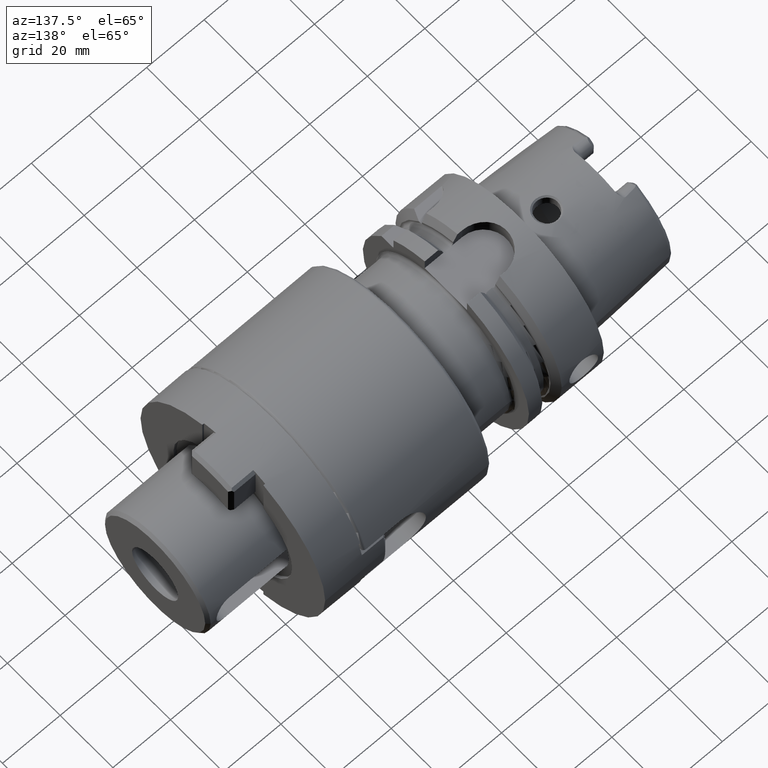
[diagram: clean part render]
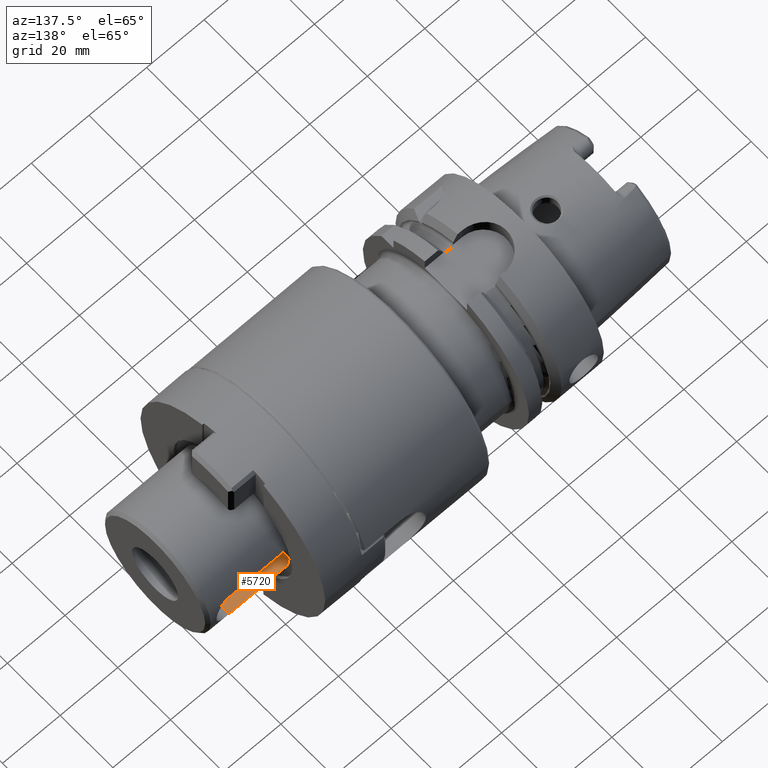
[diagram: same view with one face highlighted and labeled with its STEP entity id]
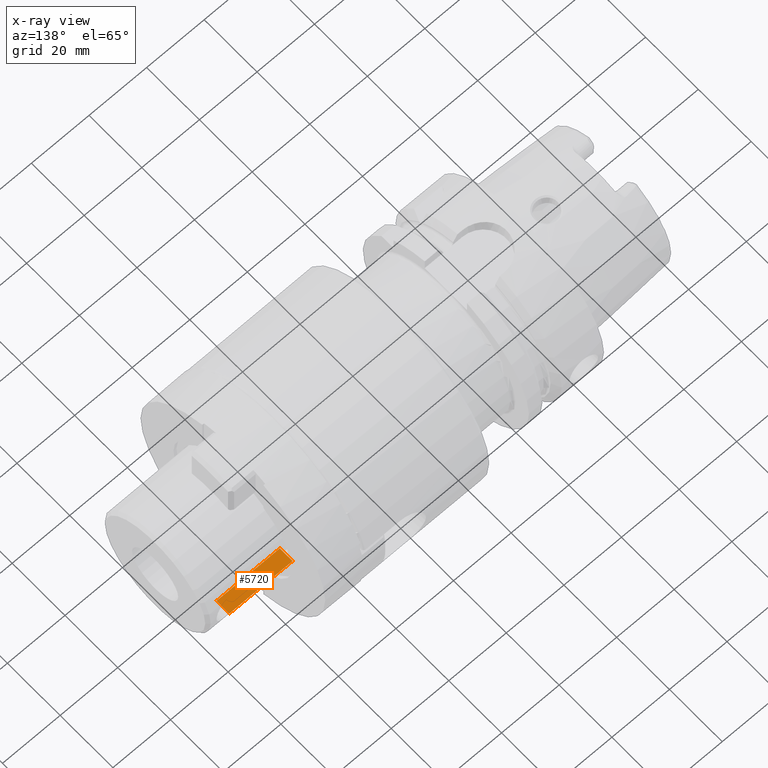
[diagram: x-ray of the same camera — body ghosted, the highlighted face saturated]
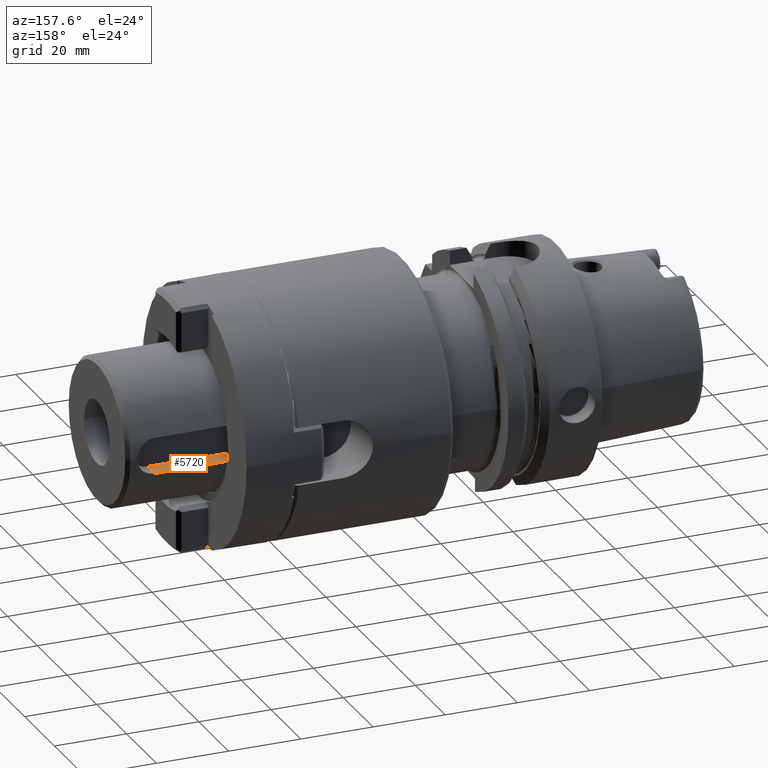
[diagram: same view with one face highlighted and labeled with its STEP entity id]
A machine part, auxiliary view. The second image highlights one B-rep face of the part: STEP entity #5720.
The next image is the same camera in x-ray: the body ghosted, the highlighted face saturated — about 0% of this face is hidden behind the body in this view.
A second angle (auxiliary view) of the same face is appended — the face is thin or edge-on in the first view.
In plain terms, the highlighted planar face has unit normal (0, 0, -1).
Its self-contained STEP definition (entity closure, byte-faithful):
#1809=DIRECTION('',(0.E0,-1.E0,0.E0));
#1810=VECTOR('',#1809,4.864916731037E0);
#1811=CARTESIAN_POINT('',(9.7E1,1.936491673104E1,-5.E0));
#1812=LINE('',#1811,#1810);
#1827=CARTESIAN_POINT('',(9.7E1,1.936491673104E1,-5.E0));
#1846=CARTESIAN_POINT('',(1.19E2,1.936491673104E1,-5.E0));
#1862=DIRECTION('',(1.E0,0.E0,0.E0));
#1863=VECTOR('',#1862,2.2E1);
#1864=CARTESIAN_POINT('',(9.7E1,1.936491673104E1,-5.E0));
#1865=LINE('',#1864,#1863);
#1933=DIRECTION('',(-1.E0,0.E0,0.E0));
#1934=VECTOR('',#1933,2.2E1);
#1935=CARTESIAN_POINT('',(1.19E2,1.45E1,-5.E0));
#1936=LINE('',#1935,#1934);
#1946=DIRECTION('',(0.E0,-1.E0,0.E0));
#1947=VECTOR('',#1946,4.864916731037E0);
#1948=CARTESIAN_POINT('',(1.19E2,1.936491673104E1,-5.E0));
#1949=LINE('',#1948,#1947);
#3533=CARTESIAN_POINT('',(9.7E1,1.45E1,-5.E0));
#3535=VERTEX_POINT('',#3533);
#3539=CARTESIAN_POINT('',(1.19E2,1.45E1,-5.E0));
#3540=VERTEX_POINT('',#3539);
#3546=VERTEX_POINT('',#1827);
#3547=VERTEX_POINT('',#1846);
#5709=CARTESIAN_POINT('',(1.19E2,2.E1,-5.E0));
#5710=DIRECTION('',(0.E0,0.E0,-1.E0));
#5711=DIRECTION('',(-1.E0,0.E0,0.E0));
#5712=AXIS2_PLACEMENT_3D('',#5709,#5710,#5711);
#5713=PLANE('',#5712);
#5714=ORIENTED_EDGE('',*,*,#5566,.T.);
#5715=ORIENTED_EDGE('',*,*,#5677,.T.);
#5716=ORIENTED_EDGE('',*,*,#5702,.T.);
#5717=ORIENTED_EDGE('',*,*,#5543,.F.);
#5718=EDGE_LOOP('',(#5714,#5715,#5716,#5717));
#5719=FACE_OUTER_BOUND('',#5718,.F.);
#5720=ADVANCED_FACE('',(#5719),#5713,.F.);
#5543=EDGE_CURVE('',#3546,#3535,#1812,.T.);
#5566=EDGE_CURVE('',#3546,#3547,#1865,.T.);
#5677=EDGE_CURVE('',#3547,#3540,#1949,.T.);
#5702=EDGE_CURVE('',#3540,#3535,#1936,.T.);